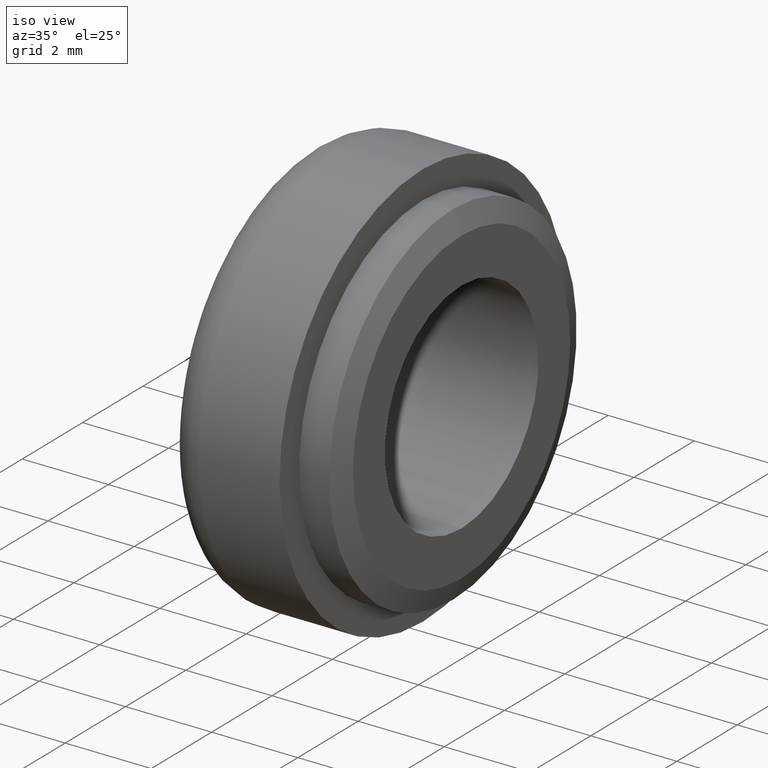
[diagram: clean part render]
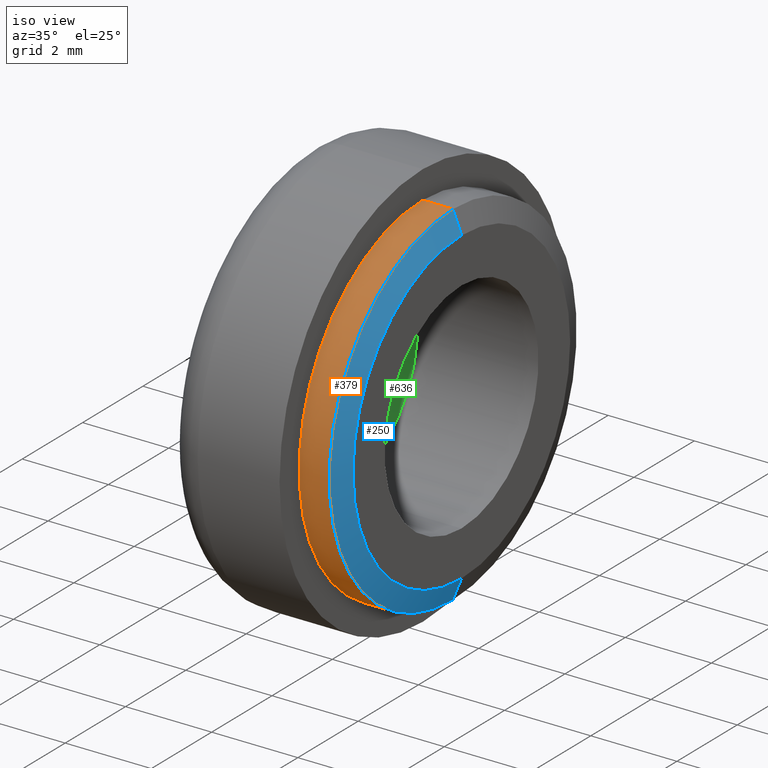
[diagram: same view with three faces highlighted in distinct colors, each labeled with its STEP entity id]
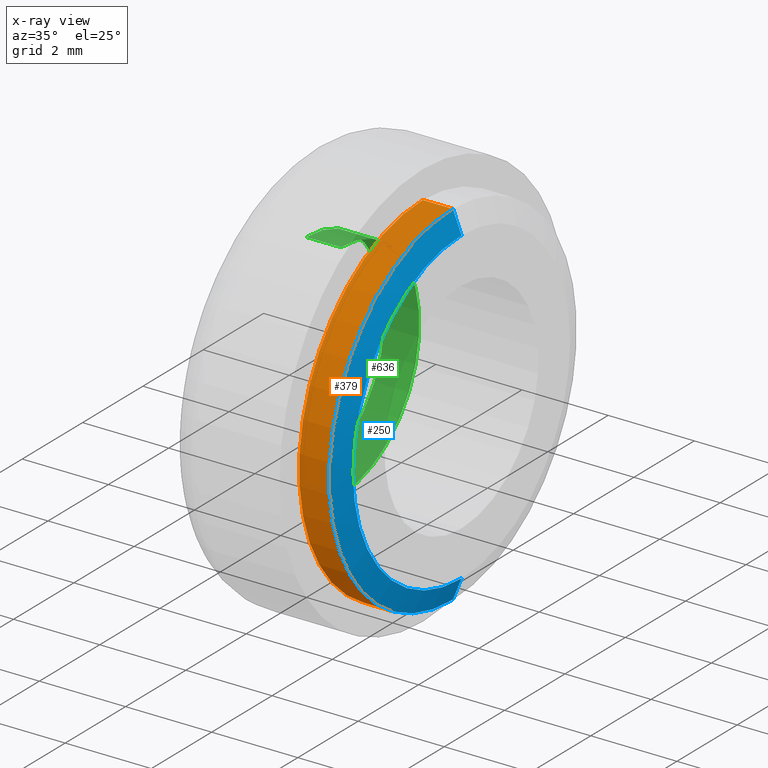
[diagram: x-ray of the same camera — body ghosted, the three highlighted faces saturated]
A machine part, iso view with three faces highlighted in distinct colors.
The next image is the same camera in x-ray (body ghosted, the three faces saturated) — at least one of them is partly hidden behind the body in this view.
Their STEP definitions:

[orange] entity #379 — the highlighted cylindrical surface (partial cylindrical patch) has radius 4.1 mm, axis along (-1, -0, -0).
#13 = CARTESIAN_POINT ( 'NONE',  ( 1.899999999999999000, 0.0000000000000000000, 0.0000000000000000000 ) ) ;
#23 = VERTEX_POINT ( 'NONE', #721 ) ;
#36 = AXIS2_PLACEMENT_3D ( 'NONE', #162, #274, #602 ) ;
#47 = DIRECTION ( 'NONE',  ( -1.000000000000000000, -0.0000000000000000000, -0.0000000000000000000 ) ) ;
#55 = VECTOR ( 'NONE', #47, 1000.000000000000000 ) ;
#63 = CIRCLE ( 'NONE', #496, 4.099999999999999600 ) ;
#70 = ORIENTED_EDGE ( 'NONE', *, *, #420, .F. ) ;
#74 = DIRECTION ( 'NONE',  ( 0.0000000000000000000, 0.0000000000000000000, 1.000000000000000000 ) ) ;
#84 = EDGE_LOOP ( 'NONE', ( #268, #671, #112, #70 ) ) ;
#91 = EDGE_CURVE ( 'NONE', #23, #486, #655, .T. ) ;
#112 = ORIENTED_EDGE ( 'NONE', *, *, #127, .T. ) ;
#120 = CARTESIAN_POINT ( 'NONE',  ( -88.98999999999999500, 0.0000000000000000000, 0.0000000000000000000 ) ) ;
#126 = CARTESIAN_POINT ( 'NONE',  ( 1.899999999999999000, 5.021051876504147400E-016, -4.099999999999999600 ) ) ;
#127 = EDGE_CURVE ( 'NONE', #486, #228, #477, .T. ) ;
#162 = CARTESIAN_POINT ( 'NONE',  ( 2.600000000000005000, 0.0000000000000000000, 0.0000000000000000000 ) ) ;
#170 = EDGE_CURVE ( 'NONE', #23, #370, #322, .T. ) ;
#228 = VERTEX_POINT ( 'NONE', #288 ) ;
#268 = ORIENTED_EDGE ( 'NONE', *, *, #170, .F. ) ;
#274 = DIRECTION ( 'NONE',  ( -1.000000000000000000, -0.0000000000000000000, -0.0000000000000000000 ) ) ;
#288 = CARTESIAN_POINT ( 'NONE',  ( 1.899999999999999000, 0.0000000000000000000, 4.099999999999999600 ) ) ;
#322 = LINE ( 'NONE', #434, #336 ) ;
#336 = VECTOR ( 'NONE', #543, 1000.000000000000000 ) ;
#359 = CARTESIAN_POINT ( 'NONE',  ( 2.600000000000005000, 0.0000000000000000000, 4.099999999999999600 ) ) ;
#364 = CYLINDRICAL_SURFACE ( 'NONE', #539, 4.099999999999999600 ) ;
#370 = VERTEX_POINT ( 'NONE', #126 ) ;
#379 = ADVANCED_FACE ( 'NONE', ( #731 ), #364, .T. ) ;
#405 = DIRECTION ( 'NONE',  ( -1.000000000000000000, -0.0000000000000000000, -0.0000000000000000000 ) ) ;
#420 = EDGE_CURVE ( 'NONE', #370, #228, #63, .T. ) ;
#434 = CARTESIAN_POINT ( 'NONE',  ( -88.98999999999999500, 5.021051876504147400E-016, -4.099999999999999600 ) ) ;
#477 = LINE ( 'NONE', #541, #55 ) ;
#486 = VERTEX_POINT ( 'NONE', #359 ) ;
#496 = AXIS2_PLACEMENT_3D ( 'NONE', #13, #405, #74 ) ;
#507 = DIRECTION ( 'NONE',  ( 0.0000000000000000000, 0.0000000000000000000, 1.000000000000000000 ) ) ;
#539 = AXIS2_PLACEMENT_3D ( 'NONE', #120, #559, #507 ) ;
#541 = CARTESIAN_POINT ( 'NONE',  ( -88.98999999999999500, 0.0000000000000000000, 4.099999999999999600 ) ) ;
#543 = DIRECTION ( 'NONE',  ( -1.000000000000000000, -0.0000000000000000000, -0.0000000000000000000 ) ) ;
#559 = DIRECTION ( 'NONE',  ( -1.000000000000000000, -0.0000000000000000000, -0.0000000000000000000 ) ) ;
#602 = DIRECTION ( 'NONE',  ( 0.0000000000000000000, 0.0000000000000000000, 1.000000000000000000 ) ) ;
#655 = CIRCLE ( 'NONE', #36, 4.099999999999999600 ) ;
#671 = ORIENTED_EDGE ( 'NONE', *, *, #91, .T. ) ;
#721 = CARTESIAN_POINT ( 'NONE',  ( 2.600000000000005000, 5.021051876504147400E-016, -4.099999999999999600 ) ) ;
#731 = FACE_OUTER_BOUND ( 'NONE', #84, .T. ) ;

[blue] entity #250 — the highlighted conical surface has half-angle 68.199 deg.
#17 = AXIS2_PLACEMENT_3D ( 'NONE', #425, #479, #150 ) ;
#23 = VERTEX_POINT ( 'NONE', #721 ) ;
#36 = AXIS2_PLACEMENT_3D ( 'NONE', #162, #274, #602 ) ;
#69 = DIRECTION ( 'NONE',  ( -0.3713906763540910600, 0.0000000000000000000, 0.9284766908852645200 ) ) ;
#76 = EDGE_CURVE ( 'NONE', #467, #23, #490, .T. ) ;
#91 = EDGE_CURVE ( 'NONE', #23, #486, #655, .T. ) ;
#98 = VERTEX_POINT ( 'NONE', #325 ) ;
#147 = DIRECTION ( 'NONE',  ( -1.000000000000000000, -0.0000000000000000000, -0.0000000000000000000 ) ) ;
#150 = DIRECTION ( 'NONE',  ( 0.0000000000000000000, 0.0000000000000000000, 1.000000000000000000 ) ) ;
#153 = DIRECTION ( 'NONE',  ( -0.3713906763540910600, 1.137056007575565700E-016, -0.9284766908852645200 ) ) ;
#156 = AXIS2_PLACEMENT_3D ( 'NONE', #473, #147, #528 ) ;
#162 = CARTESIAN_POINT ( 'NONE',  ( 2.600000000000005000, 0.0000000000000000000, 0.0000000000000000000 ) ) ;
#164 = ORIENTED_EDGE ( 'NONE', *, *, #354, .T. ) ;
#235 = VECTOR ( 'NONE', #69, 999.9999999999998900 ) ;
#238 = CARTESIAN_POINT ( 'NONE',  ( 2.799999999999997200, 4.714890176717308500E-016, -3.600000000000000100 ) ) ;
#250 = ADVANCED_FACE ( 'NONE', ( #616 ), #270, .T. ) ;
#270 = CONICAL_SURFACE ( 'NONE', #17, 3.600000000000000100, 1.190289949682545400 ) ;
#274 = DIRECTION ( 'NONE',  ( -1.000000000000000000, -0.0000000000000000000, -0.0000000000000000000 ) ) ;
#319 = ORIENTED_EDGE ( 'NONE', *, *, #564, .T. ) ;
#325 = CARTESIAN_POINT ( 'NONE',  ( 2.799999999999997200, 0.0000000000000000000, 3.600000000000000100 ) ) ;
#340 = CARTESIAN_POINT ( 'NONE',  ( 2.799999999999997200, 4.408728476930471200E-016, -3.600000000000000100 ) ) ;
#354 = EDGE_CURVE ( 'NONE', #98, #486, #679, .T. ) ;
#356 = VECTOR ( 'NONE', #153, 999.9999999999998900 ) ;
#359 = CARTESIAN_POINT ( 'NONE',  ( 2.600000000000005000, 0.0000000000000000000, 4.099999999999999600 ) ) ;
#361 = ORIENTED_EDGE ( 'NONE', *, *, #91, .F. ) ;
#424 = CIRCLE ( 'NONE', #156, 3.600000000000000100 ) ;
#425 = CARTESIAN_POINT ( 'NONE',  ( 2.799999999999997200, 0.0000000000000000000, 0.0000000000000000000 ) ) ;
#467 = VERTEX_POINT ( 'NONE', #238 ) ;
#473 = CARTESIAN_POINT ( 'NONE',  ( 2.799999999999997200, 0.0000000000000000000, 0.0000000000000000000 ) ) ;
#479 = DIRECTION ( 'NONE',  ( -1.000000000000000000, -0.0000000000000000000, -0.0000000000000000000 ) ) ;
#486 = VERTEX_POINT ( 'NONE', #359 ) ;
#490 = LINE ( 'NONE', #340, #356 ) ;
#523 = EDGE_LOOP ( 'NONE', ( #650, #319, #164, #361 ) ) ;
#528 = DIRECTION ( 'NONE',  ( 0.0000000000000000000, 0.0000000000000000000, 1.000000000000000000 ) ) ;
#564 = EDGE_CURVE ( 'NONE', #467, #98, #424, .T. ) ;
#602 = DIRECTION ( 'NONE',  ( 0.0000000000000000000, 0.0000000000000000000, 1.000000000000000000 ) ) ;
#616 = FACE_OUTER_BOUND ( 'NONE', #523, .T. ) ;
#639 = CARTESIAN_POINT ( 'NONE',  ( 2.799999999999997200, 0.0000000000000000000, 3.600000000000000100 ) ) ;
#650 = ORIENTED_EDGE ( 'NONE', *, *, #76, .F. ) ;
#655 = CIRCLE ( 'NONE', #36, 4.099999999999999600 ) ;
#679 = LINE ( 'NONE', #639, #235 ) ;
#721 = CARTESIAN_POINT ( 'NONE',  ( 2.600000000000005000, 5.021051876504147400E-016, -4.099999999999999600 ) ) ;

[green] entity #636 — the highlighted cylindrical surface (partial cylindrical patch) has radius 2.6 mm, axis along (-1, 0, 0).
#14 = VERTEX_POINT ( 'NONE', #104 ) ;
#43 = DIRECTION ( 'NONE',  ( 0.0000000000000000000, 0.0000000000000000000, 1.000000000000000000 ) ) ;
#101 = CIRCLE ( 'NONE', #389, 2.600000000000000100 ) ;
#104 = CARTESIAN_POINT ( 'NONE',  ( 0.7999999999999999300, 3.184081677783117700E-016, -2.600000000000000100 ) ) ;
#105 = ORIENTED_EDGE ( 'NONE', *, *, #200, .F. ) ;
#116 = CARTESIAN_POINT ( 'NONE',  ( 0.7999999999999999300, 0.0000000000000000000, 0.0000000000000000000 ) ) ;
#130 = DIRECTION ( 'NONE',  ( 0.0000000000000000000, 0.0000000000000000000, -1.000000000000000000 ) ) ;
#180 = CARTESIAN_POINT ( 'NONE',  ( 0.7999999999999999300, 0.0000000000000000000, 2.600000000000000100 ) ) ;
#200 = EDGE_CURVE ( 'NONE', #436, #14, #299, .T. ) ;
#202 = ORIENTED_EDGE ( 'NONE', *, *, #694, .F. ) ;
#254 = CARTESIAN_POINT ( 'NONE',  ( 0.0000000000000000000, 0.0000000000000000000, 0.0000000000000000000 ) ) ;
#299 = CIRCLE ( 'NONE', #675, 2.600000000000000100 ) ;
#337 = DIRECTION ( 'NONE',  ( 0.0000000000000000000, 0.0000000000000000000, -1.000000000000000000 ) ) ;
#349 = EDGE_CURVE ( 'NONE', #560, #662, #101, .T. ) ;
#358 = CYLINDRICAL_SURFACE ( 'NONE', #480, 2.600000000000000100 ) ;
#360 = ORIENTED_EDGE ( 'NONE', *, *, #382, .T. ) ;
#374 = FACE_OUTER_BOUND ( 'NONE', #428, .T. ) ;
#381 = LINE ( 'NONE', #392, #664 ) ;
#382 = EDGE_CURVE ( 'NONE', #436, #662, #381, .T. ) ;
#389 = AXIS2_PLACEMENT_3D ( 'NONE', #254, #699, #130 ) ;
#392 = CARTESIAN_POINT ( 'NONE',  ( 2.700000000000000200, 0.0000000000000000000, 2.600000000000000100 ) ) ;
#428 = EDGE_LOOP ( 'NONE', ( #202, #105, #360, #497 ) ) ;
#431 = CARTESIAN_POINT ( 'NONE',  ( 0.0000000000000000000, 0.0000000000000000000, 2.600000000000000100 ) ) ;
#433 = LINE ( 'NONE', #697, #720 ) ;
#436 = VERTEX_POINT ( 'NONE', #180 ) ;
#480 = AXIS2_PLACEMENT_3D ( 'NONE', #657, #483, #43 ) ;
#483 = DIRECTION ( 'NONE',  ( -1.000000000000000000, 0.0000000000000000000, 0.0000000000000000000 ) ) ;
#497 = ORIENTED_EDGE ( 'NONE', *, *, #349, .F. ) ;
#560 = VERTEX_POINT ( 'NONE', #706 ) ;
#615 = DIRECTION ( 'NONE',  ( -1.000000000000000000, -0.0000000000000000000, -0.0000000000000000000 ) ) ;
#636 = ADVANCED_FACE ( 'NONE', ( #374 ), #358, .F. ) ;
#638 = DIRECTION ( 'NONE',  ( -1.000000000000000000, 0.0000000000000000000, 0.0000000000000000000 ) ) ;
#657 = CARTESIAN_POINT ( 'NONE',  ( 2.700000000000000200, 0.0000000000000000000, 0.0000000000000000000 ) ) ;
#662 = VERTEX_POINT ( 'NONE', #431 ) ;
#664 = VECTOR ( 'NONE', #682, 1000.000000000000000 ) ;
#675 = AXIS2_PLACEMENT_3D ( 'NONE', #116, #615, #337 ) ;
#682 = DIRECTION ( 'NONE',  ( -1.000000000000000000, 0.0000000000000000000, 0.0000000000000000000 ) ) ;
#694 = EDGE_CURVE ( 'NONE', #14, #560, #433, .T. ) ;
#697 = CARTESIAN_POINT ( 'NONE',  ( 2.700000000000000200, 3.184081677783117700E-016, -2.600000000000000100 ) ) ;
#699 = DIRECTION ( 'NONE',  ( 1.000000000000000000, 0.0000000000000000000, 0.0000000000000000000 ) ) ;
#706 = CARTESIAN_POINT ( 'NONE',  ( 0.0000000000000000000, 3.184081677783117700E-016, -2.600000000000000100 ) ) ;
#720 = VECTOR ( 'NONE', #638, 1000.000000000000000 ) ;